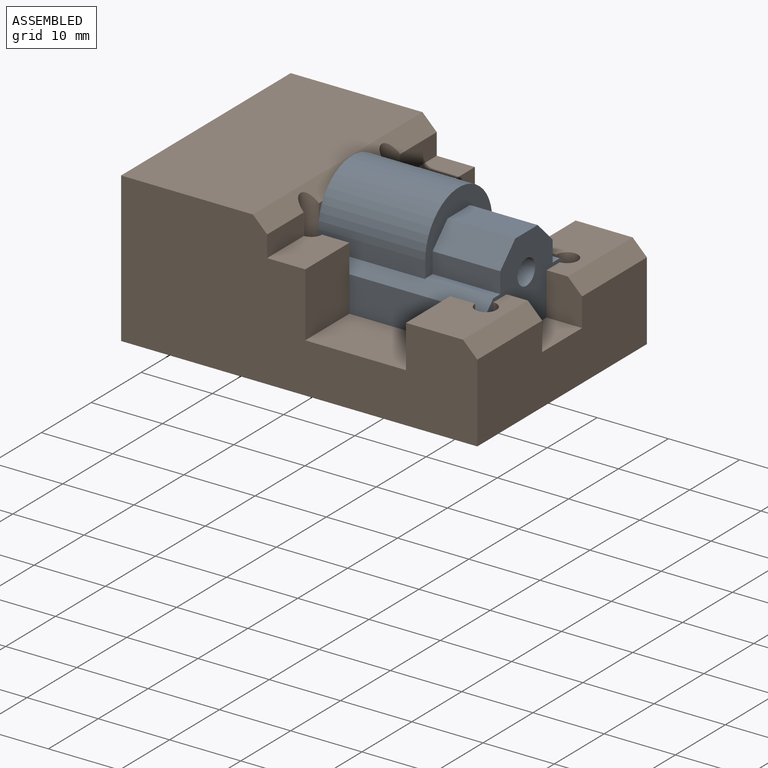
[diagram: assembled view]
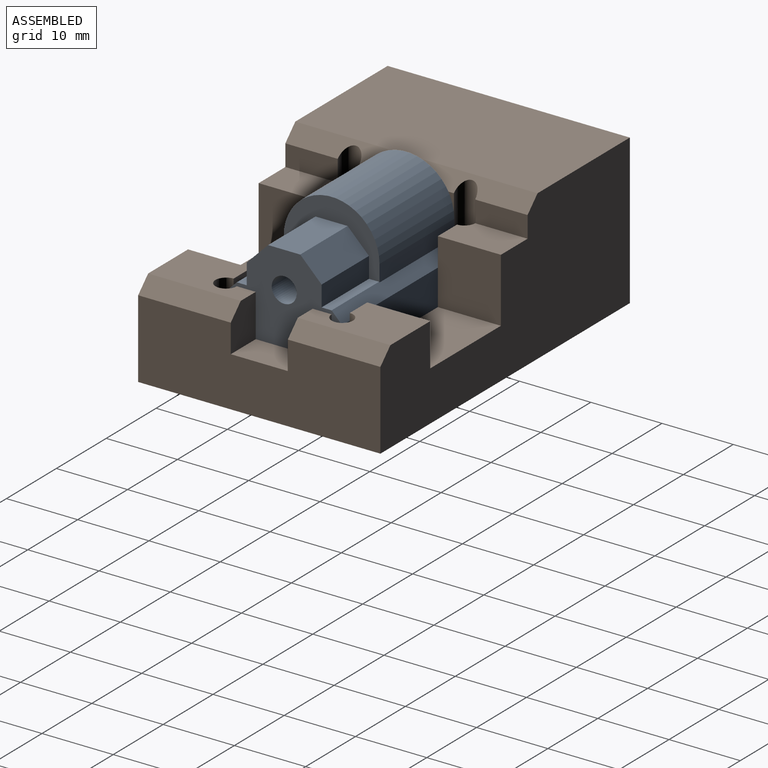
[diagram: assembled view, second angle]
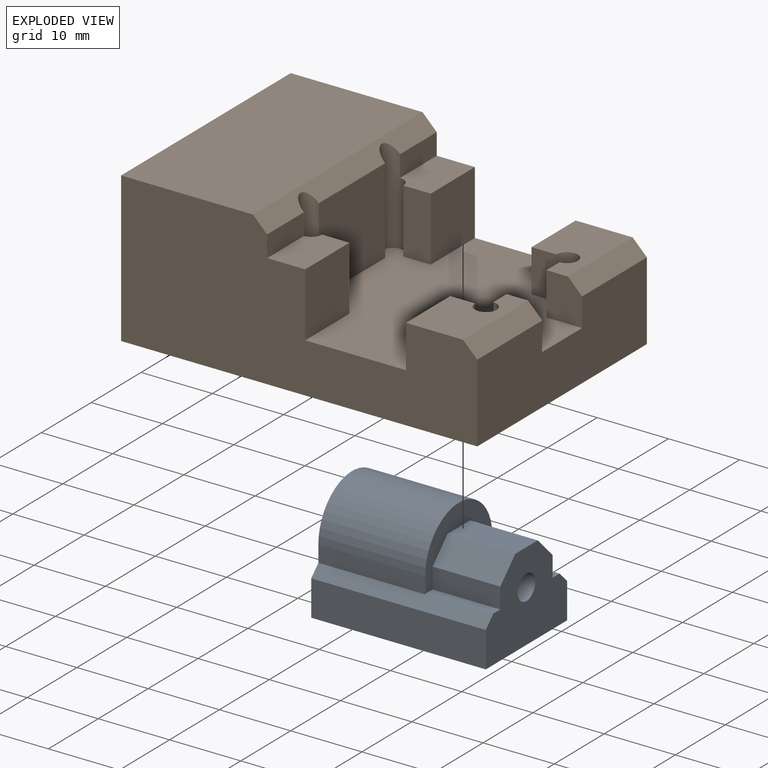
[diagram: exploded view]
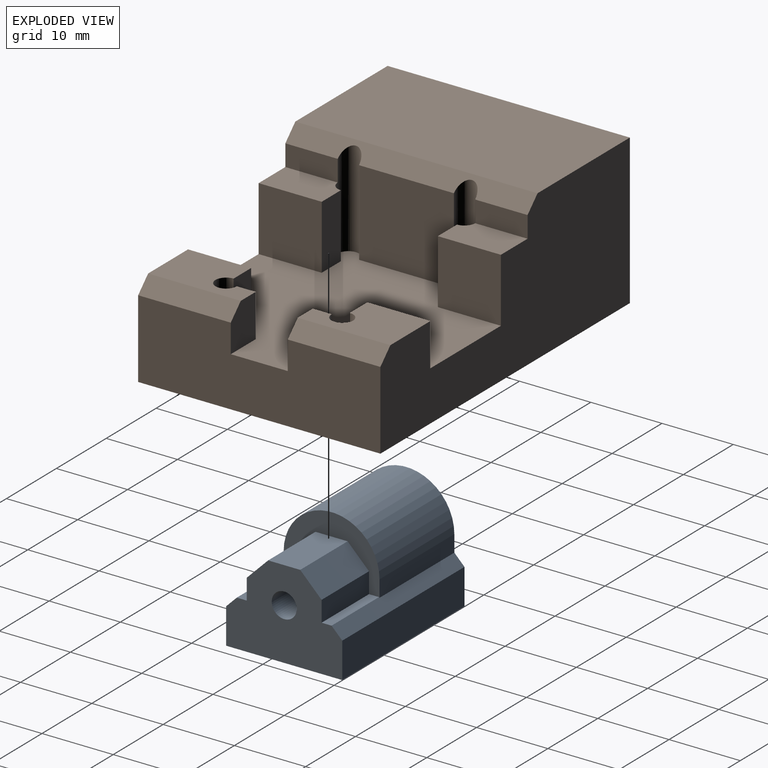
[diagram: exploded view, second angle]
ASSEMBLY  parts=2 mates=2
PART A: 20 faces, bbox 16.3x24.5x15.5 mm
  f0: plane 9.5x3mm, normal (0.71,0,0.71), area 40.3mm2, adj f1,f8,f13,f16
  f1: plane 9.5x4.5mm, normal (0,0,1), area 42.7mm2, adj f0,f2,f13,f16
  f2: plane 9.5x3mm, normal (-0.71,0,0.71), area 40.3mm2, adj f1,f3,f13,f16
  f3: plane 9.5x2.9mm, normal (-1,0,0), area 27.6mm2, adj f2,f4,f13,f16
  f4: plane 9.5x1.4mm, normal (0,0,1), area 13.3mm2, adj f3,f9,f13,f16
  f5: plane 24.5x1.5mm, normal (0.71,0,0.71), area 50.4mm2, adj f6,f12,f13,f14,f16,f17
  f6: plane 9.5x1.4mm, normal (0,0,1), area 13.3mm2, adj f5,f8,f13,f16
  f7: cylinder r=1.75mm len=9.5mm, axis (0,1,0), area 104.5mm2, adj f13,f19
  f8: plane 9.5x2.9mm, normal (1,0,0), area 27.6mm2, adj f0,f6,f13,f16
  f9: plane 24.5x1.5mm, normal (-0.71,0,0.71), area 50.4mm2, adj f4,f10,f13,f14,f16,f18
  f10: plane 24.5x5mm, normal (-1,0,0), area 122.5mm2, adj f9,f11,f13,f14
  f11: plane 24.5x16.3mm, normal (0,0,-1), area 399.3mm2, adj f10,f12,f13,f14
  f12: plane 24.5x5mm, normal (1,0,0), area 122.5mm2, adj f5,f11,f13,f14
  f13: plane 16.3x12.4mm, normal (0,-1,0), area 147mm2, adj f0,f1,f2,f3,f4,f5,f6,f7
  f14: plane 16.3x15.5mm, normal (0,1,0), area 205.3mm2, adj f5,f9,f10,f11,f12,f15,f17,f18
  f15: cylinder r=6.72mm len=15mm, axis (0,1,0), area 316.9mm2, adj f14,f16,f17,f18
  f16: plane 13.45x9.08mm, normal (0,-1,0), area 48.7mm2, adj f0,f1,f2,f3,f4,f5,f6,f8
  f17: plane 15x2.35mm, normal (1,0,0), area 35.3mm2, adj f5,f14,f15,f16
  f18: plane 15x2.35mm, normal (-1,0,0), area 35.3mm2, adj f9,f14,f15,f16
  f19: plane 3.5x3.5mm, normal (0,-1,0), area 9.6mm2, adj f7
PART B: 35 faces, bbox 50x34x21 mm
  f0: plane 13.3x12mm, normal (1,0,0), area 159.6mm2, adj f9,f30,f31,f34
  f1: plane 7.35x3mm, normal (1,0,0), area 22mm2, adj f13,f27,f30,f34
  f2: plane 50x21mm, normal (0,-1,0), area 741.1mm2, adj f3,f5,f8,f9,f10,f12,f17,f20
  f3: plane 9x8.85mm, normal (1,0,0), area 79.7mm2, adj f2,f9,f24,f28
  f4: plane 9x8.85mm, normal (1,0,0), area 79.6mm2, adj f9,f13,f25,f27
  f5: plane 8.85x6mm, normal (-1,0,0), area 53.1mm2, adj f2,f9,f17,f22
  f6: plane 6x2.65mm, normal (-1,0,0), area 15.9mm2, adj f7,f9,f17,f33
  f7: plane 6x5mm, normal (0,1,0), area 28mm2, adj f6,f9,f10,f17,f20
  f8: plane 34x21mm, normal (-1,0,0), area 675.5mm2, adj f2,f12,f13,f18,f29
  f9: plane 34x31mm, normal (0,0,1), area 711mm2, adj f0,f2,f3,f4,f5,f6,f7,f10
  f10: plane 34x11mm, normal (1,0,0), area 342mm2, adj f2,f7,f9,f12,f13,f14,f20,f21
  f11: plane 6x2.65mm, normal (-1,0,0), area 15.9mm2, adj f9,f14,f16,f32
  f12: plane 50x34mm, normal (0,0,-1), area 1700mm2, adj f2,f8,f10,f13
  f13: plane 50x21mm, normal (0,1,0), area 741.2mm2, adj f1,f4,f8,f9,f10,f12,f15,f16
  f14: plane 6x5mm, normal (0,-1,0), area 28mm2, adj f9,f10,f11,f16,f21
  f15: plane 8.85x6mm, normal (-1,0,0), area 53.1mm2, adj f9,f13,f16,f23
  f16: plane 13x8mm, normal (0,0,1), area 77.9mm2, adj f11,f13,f14,f15,f21,f23,f32
  f17: plane 13x8mm, normal (0,0,1), area 77.9mm2, adj f2,f5,f6,f7,f20,f22,f33
  f18: cylinder r=3.5mm len=7mm, axis (-1,0,0), area 131.9mm2, adj f8,f19
  f19: plane 7x7mm, normal (-1,0,0), area 38.5mm2, adj f18
  f20: plane 13x2mm, normal (0.71,0,0.71), area 36.8mm2, adj f2,f7,f10,f17
  f21: plane 13x2mm, normal (0.71,0,0.71), area 36.8mm2, adj f10,f13,f14,f16
  f22: plane 6x3.5mm, normal (0,1,0), area 21mm2, adj f5,f9,f17,f33
  f23: plane 6x3.5mm, normal (0,-1,0), area 21mm2, adj f9,f15,f16,f32
  f24: plane 9x3.85mm, normal (0,1,0), area 34.6mm2, adj f3,f9,f28,f31
  f25: plane 9x3.85mm, normal (0,-1,0), area 34.6mm2, adj f4,f9,f27,f30
  f26: plane 7.35x3mm, normal (1,0,0), area 22mm2, adj f2,f28,f31,f34
  f27: plane 8.85x5.35mm, normal (0,0,1), area 45.6mm2, adj f1,f4,f13,f25,f30
  f28: plane 8.85x5.35mm, normal (0,0,1), area 45.6mm2, adj f2,f3,f24,f26,f31
  f29: plane 34x18.5mm, normal (0,0,1), area 629mm2, adj f2,f8,f13,f34
  f30: cylinder r=1.5mm len=13.51mm, axis (0,0,1), area 82.3mm2, adj f0,f1,f9,f25,f27,f34
  f31: cylinder r=1.5mm len=13.51mm, axis (0,0,1), area 82.3mm2, adj f0,f9,f24,f26,f28,f34
  f32: cylinder r=1.5mm len=6mm, axis (0,0,1), area 42.4mm2, adj f9,f11,f16,f23
  f33: cylinder r=1.5mm len=6mm, axis (0,0,1), area 42.4mm2, adj f6,f9,f17,f22
  f34: plane 34x2mm, normal (0.71,0,0.71), area 86.2mm2, adj f0,f1,f2,f13,f26,f29,f30,f31
PLACE A rot(axis=(0,0,1),90deg) t=(-4.5,-17.01,0.2)mm
PLACE B at identity fixed
MATE parallel B.f9 <-> A.f11  axis (0,0,1) through (8.64,-17,-6)mm
MATE parallel A.f13 <-> B.f6  axis (1,0,0) through (20,-11.76,0.5)mm
